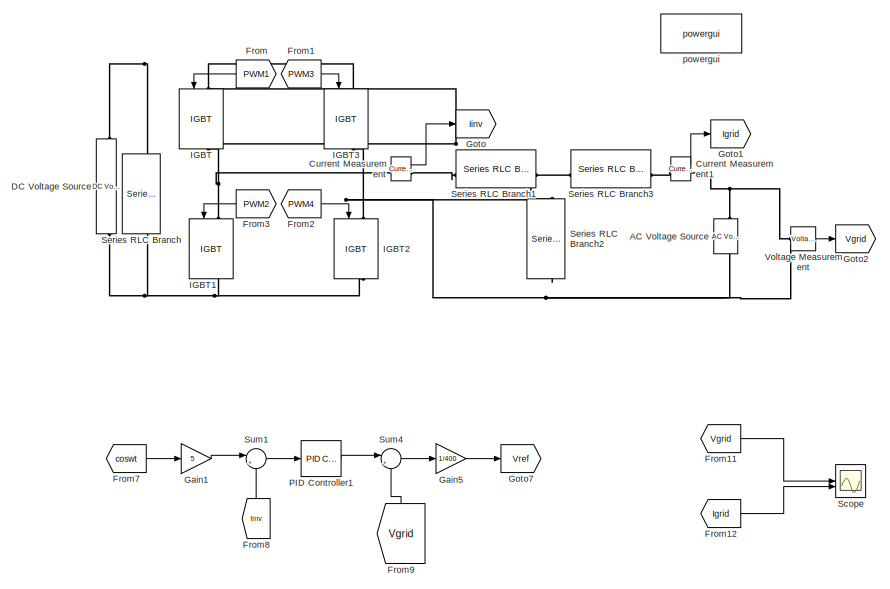
[diagram: root canvas - part 1/2, left side, full height]
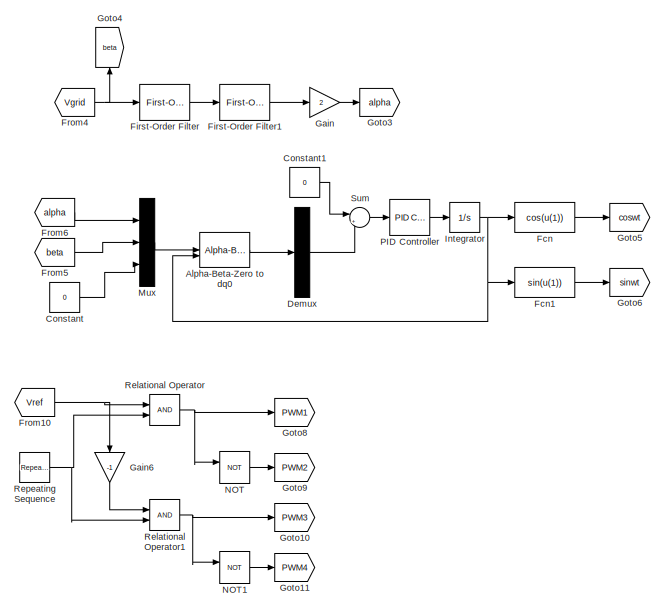
[diagram: root canvas - part 2/2, right side, full height]
MODEL slx_ba2ac583218c
KIND model
CONFIG AbsTol = auto
CONFIG EnableMultiTasking = off
CONFIG FixedStep = auto
CONFIG MaxStep = 1e-7
CONFIG MinStep = 1e-8
CONFIG RelTol = 1e-3
CONFIG SampleTimeConstraint = Unconstrained
CONFIG SolverName = ode45
CONFIG StartTime = 0.0
CONFIG StopTime = 0.1
BLOCK [Reference] AC Voltage Source  REF=spsACVoltageSourceLib/AC Voltage Source
  LibrarySourceBlock = sps_lib/Sources/AC Voltage Source
  SourceBlock = spsACVoltageSourceLib/AC Voltage Source
  SourceType = AC Voltage Source
BLOCK [Reference] Alpha-Beta-Zero to dq0  REF=spsAlphaBetaZerotodq0Lib/Alpha-Beta-Zero
to dq0
  LibrarySourceBlock = sps_lib/Control/Alpha-Beta-Zero\nto dq0
  SourceBlock = spsAlphaBetaZerotodq0Lib/Alpha-Beta-Zero\nto dq0
  SourceType = Alpha-Beta-Zero to dq0 Transformation
BLOCK [Constant] Constant
  Value = 0
BLOCK [Constant] Constant1
  Value = 0
BLOCK [Reference] Current Measurement  REF=spsCurrentMeasurementLib/Current Measurement
  LibrarySourceBlock = sps_lib/Sensors and Measurements/Current Measurement
  SourceBlock = spsCurrentMeasurementLib/Current Measurement
  SourceType = Current Measurement
  UserDataPersistent = on
BLOCK [Reference] Current Measurement1  REF=spsCurrentMeasurementLib/Current Measurement
  LibrarySourceBlock = sps_lib/Sensors and Measurements/Current Measurement
  SourceBlock = spsCurrentMeasurementLib/Current Measurement
  SourceType = Current Measurement
  UserDataPersistent = on
BLOCK [Reference] DC Voltage Source  REF=spsDCVoltageSourceLib/DC Voltage Source
  LibrarySourceBlock = sps_lib/Sources/DC Voltage Source
  SourceBlock = spsDCVoltageSourceLib/DC Voltage Source
  SourceType = DC Voltage Source
BLOCK [Demux] Demux
  Outputs = 3
BLOCK [Fcn] Fcn
  Expr = cos(u(1))
BLOCK [Fcn] Fcn1
  Expr = sin(u(1))
BLOCK [Reference] First-Order Filter  REF=spsFirstOrderFilterLib/First-Order
Filter
  LibrarySourceBlock = sps_lib/Control/Filters/First-Order\nFilter
  SourceBlock = spsFirstOrderFilterLib/First-Order\nFilter
  SourceType = First-Order Filter
BLOCK [Reference] First-Order Filter1  REF=spsFirstOrderFilterLib/First-Order
Filter
  LibrarySourceBlock = sps_lib/Control/Filters/First-Order\nFilter
  SourceBlock = spsFirstOrderFilterLib/First-Order\nFilter
  SourceType = First-Order Filter
BLOCK [From] From
  GotoTag = PWM1
  NameLocation = top
BLOCK [From] From1
  GotoTag = PWM3
BLOCK [From] From10
  GotoTag = Vref
BLOCK [From] From11
  GotoTag = Vgrid
BLOCK [From] From12
  GotoTag = Igrid
BLOCK [From] From2
  GotoTag = PWM4
BLOCK [From] From3
  GotoTag = PWM2
  NameLocation = top
BLOCK [From] From4
  GotoTag = Vgrid
BLOCK [From] From5
  GotoTag = beta
BLOCK [From] From6
  GotoTag = alpha
BLOCK [From] From7
  GotoTag = coswt
BLOCK [From] From8
  GotoTag = Iinv
  NameLocation = right
BLOCK [From] From9
  GotoTag = Vgrid
  NameLocation = right
BLOCK [Gain] Gain
  Gain = 2
BLOCK [Gain] Gain1
  Gain = 5
BLOCK [Gain] Gain5
  Gain = 1/400
BLOCK [Gain] Gain6
  Gain = -1
  NameLocation = left
BLOCK [Goto] Goto
  GotoTag = Iinv
  NameLocation = top
BLOCK [Goto] Goto1
  GotoTag = Igrid
  NameLocation = top
BLOCK [Goto] Goto10
  GotoTag = PWM3
  NameLocation = top
BLOCK [Goto] Goto11
  GotoTag = PWM4
  NameLocation = top
BLOCK [Goto] Goto2
  GotoTag = Vgrid
  NameLocation = top
BLOCK [Goto] Goto3
  GotoTag = alpha
  NameLocation = top
BLOCK [Goto] Goto4
  GotoTag = beta
  NameLocation = left
BLOCK [Goto] Goto5
  GotoTag = coswt
  NameLocation = top
BLOCK [Goto] Goto6
  GotoTag = sinwt
  NameLocation = top
BLOCK [Goto] Goto7
  GotoTag = Vref
  NameLocation = top
BLOCK [Goto] Goto8
  GotoTag = PWM1
  NameLocation = top
BLOCK [Goto] Goto9
  GotoTag = PWM2
  NameLocation = top
BLOCK [Reference] IGBT  REF=spsIGBTLib/IGBT
  LibrarySourceBlock = sps_lib/Power Electronics/IGBT
  NameLocation = left
  SourceBlock = spsIGBTLib/IGBT
  SourceType = IGBT
BLOCK [Reference] IGBT1  REF=spsIGBTLib/IGBT
  LibrarySourceBlock = sps_lib/Power Electronics/IGBT
  NameLocation = left
  SourceBlock = spsIGBTLib/IGBT
  SourceType = IGBT
BLOCK [Reference] IGBT2  REF=spsIGBTLib/IGBT
  LibrarySourceBlock = sps_lib/Power Electronics/IGBT
  NameLocation = left
  SourceBlock = spsIGBTLib/IGBT
  SourceType = IGBT
BLOCK [Reference] IGBT3  REF=spsIGBTLib/IGBT
  LibrarySourceBlock = sps_lib/Power Electronics/IGBT
  NameLocation = left
  SourceBlock = spsIGBTLib/IGBT
  SourceType = IGBT
BLOCK [Integrator] Integrator
BLOCK [Mux] Mux
  DisplayOption = bar
  Inputs = 3
BLOCK [Logic] NOT
  AllPortsSameDT = off
  IconShape = distinctive
  Operator = NOT
  OutDataTypeStr = boolean
BLOCK [Logic] NOT1
  AllPortsSameDT = off
  IconShape = distinctive
  Operator = NOT
  OutDataTypeStr = boolean
BLOCK [Reference] PID Controller  REF=slpidlib/PID Controller
  LibrarySourceBlock = simulink/Continuous/PID Controller
  SourceBlock = slpidlib/PID Controller
  SourceType = PID 1dof
BLOCK [Reference] PID Controller1  REF=slpidlib/PID Controller
  LibrarySourceBlock = simulink/Continuous/PID Controller
  SourceBlock = slpidlib/PID Controller
  SourceType = PID 1dof
BLOCK [RelationalOperator] Relational Operator
  InputSameDT = off
  OutDataTypeStr = boolean
  RndMeth = Simplest
BLOCK [RelationalOperator] Relational Operator1
  InputSameDT = off
  OutDataTypeStr = boolean
  RndMeth = Simplest
BLOCK [Reference] Repeating Sequence  REF=simulink/Sources/Repeating
Sequence
  SourceBlock = simulink/Sources/Repeating\nSequence
  SourceType = Repeating table
BLOCK [Scope] Scope
  Floating = off
  NumInputPorts = 2
  ScopeSpecificationString = Simulink.scopes.TimeScopeBlockCfg('CurrentConfiguration', extmgr.ConfigurationSet(extmgr.Configuration('Core','General UI',true),extmgr.Configuration('Core','Source UI',true),extmgr.Configuration('Sources','WiredSimulink',true),extmgr.Configuration('Visuals','Time Domain',true,'SerializedDisplays',{struct('MinYLimReal','-406.25','MaxYLimReal','406.25','YLabelReal','','MinYLimMag',' 0.00000','MaxYL...<+2033ch>
BLOCK [Reference] Series RLC Branch  REF=spsSeriesRLCBranchLib/Series RLC Branch
  LibrarySourceBlock = sps_lib/Passives/Series RLC Branch
  NameLocation = left
  SourceBlock = spsSeriesRLCBranchLib/Series RLC Branch
  SourceType = Series RLC Branch
BLOCK [Reference] Series RLC Branch1  REF=spsSeriesRLCBranchLib/Series RLC Branch
  LibrarySourceBlock = sps_lib/Passives/Series RLC Branch
  NameLocation = top
  SourceBlock = spsSeriesRLCBranchLib/Series RLC Branch
  SourceType = Series RLC Branch
BLOCK [Reference] Series RLC Branch2  REF=spsSeriesRLCBranchLib/Series RLC Branch
  LibrarySourceBlock = sps_lib/Passives/Series RLC Branch
  NameLocation = right
  SourceBlock = spsSeriesRLCBranchLib/Series RLC Branch
  SourceType = Series RLC Branch
BLOCK [Reference] Series RLC Branch3  REF=spsSeriesRLCBranchLib/Series RLC Branch
  LibrarySourceBlock = sps_lib/Passives/Series RLC Branch
  NameLocation = top
  SourceBlock = spsSeriesRLCBranchLib/Series RLC Branch
  SourceType = Series RLC Branch
BLOCK [Sum] Sum
  Inputs = |+-
BLOCK [Sum] Sum1
  Inputs = |+-
BLOCK [Sum] Sum4
  Inputs = |++
BLOCK [Reference] Voltage Measurement  REF=spsVoltageMeasurementLib/Voltage Measurement
  LibrarySourceBlock = sps_lib/Sensors and Measurements/Voltage Measurement
  SourceBlock = spsVoltageMeasurementLib/Voltage Measurement
  SourceType = Voltage Measurement
  UserDataPersistent = on
BLOCK [Reference] powergui  REF=sps_lib/powergui
  Priority = 1
  SourceBlock = sps_lib/powergui
  SourceType = PSB option menu block
LINE Alpha-Beta-Zero to dq0:1 -> Demux:1
LINE Constant1:1 -> Sum:1
LINE Constant:1 -> Mux:3
LINE Current Measurement1:1 -> Goto1:1
LINE Current Measurement:1 -> Goto:1
LINE Demux:2 -> Sum:2
LINE Fcn1:1 -> Goto6:1
LINE Fcn:1 -> Goto5:1
LINE First-Order Filter1:1 -> Gain:1
LINE First-Order Filter:1 -> First-Order Filter1:1
NET From10:1 -> Gain6:1, Relational Operator:1
LINE From11:1 -> Scope:1
LINE From12:1 -> Scope:2
LINE From1:1 -> IGBT3:1
LINE From2:1 -> IGBT2:1
LINE From3:1 -> IGBT1:1
NET From4:1 -> First-Order Filter:1, Goto4:1
LINE From5:1 -> Mux:2
LINE From6:1 -> Mux:1
LINE From7:1 -> Gain1:1
LINE From8:1 -> Sum1:2
LINE From9:1 -> Sum4:2
LINE From:1 -> IGBT:1
LINE Gain1:1 -> Sum1:1
LINE Gain5:1 -> Goto7:1
LINE Gain6:1 -> Relational Operator1:1
LINE Gain:1 -> Goto3:1
NET Integrator:1 -> Alpha-Beta-Zero to dq0:2, Fcn1:1, Fcn:1
LINE Mux:1 -> Alpha-Beta-Zero to dq0:1
LINE NOT1:1 -> Goto11:1
LINE NOT:1 -> Goto9:1
LINE PID Controller1:1 -> Sum4:1
LINE PID Controller:1 -> Integrator:1
NET Relational Operator1:1 -> Goto10:1, NOT1:1
NET Relational Operator:1 -> Goto8:1, NOT:1
NET Repeating Sequence:1 -> Relational Operator1:2, Relational Operator:2
LINE Sum1:1 -> PID Controller1:1
LINE Sum4:1 -> Gain5:1
LINE Sum:1 -> PID Controller:1
LINE Voltage Measurement:1 -> Goto2:1
PNET net1: AC Voltage Source:LConn1 -- IGBT2:LConn1 -- IGBT3:RConn1 -- Series RLC Branch2:LConn1 -- Voltage Measurement:LConn2
PNET net2: AC Voltage Source:RConn1 -- Current Measurement1:RConn1 -- Voltage Measurement:LConn1
PLINE Current Measurement1:LConn1 -- Series RLC Branch3:LConn1
PNET net3: Current Measurement:LConn1 -- IGBT1:LConn1 -- IGBT:RConn1
PLINE Current Measurement:RConn1 -- Series RLC Branch1:RConn1
PNET net4: DC Voltage Source:LConn1 -- IGBT1:RConn1 -- IGBT2:RConn1 -- Series RLC Branch:RConn1
PNET net5: DC Voltage Source:RConn1 -- IGBT3:LConn1 -- IGBT:LConn1 -- Series RLC Branch:LConn1
PNET net6: Series RLC Branch1:LConn1 -- Series RLC Branch2:RConn1 -- Series RLC Branch3:RConn1
note: NET lines group one-source signal fan-out (src -> all destinations, sorted); 1:1 wires keep LINE; PNET lines group multi-terminal physical nets as a canonical sorted terminal list (undirected conserving connections); 2-terminal nets keep the pairwise PLINE form
